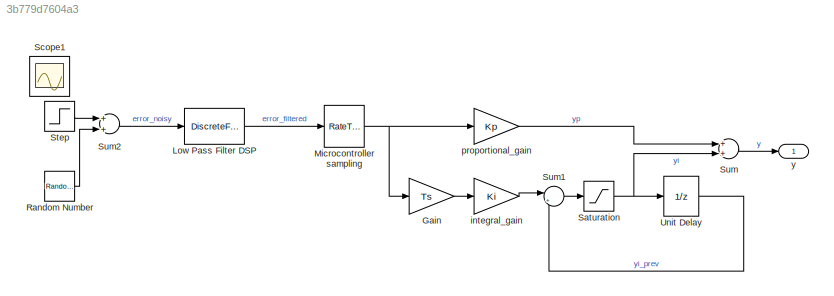
MODEL slx_3b779d7604a3
KIND model
CONFIG AbsTol = auto
CONFIG EnableMultiTasking = on
CONFIG FixedStep = auto
CONFIG MaxStep = auto
CONFIG MinStep = auto
CONFIG PreLoadFcn = etc_PI_data;\netc_PI_filtered_data;
CONFIG RelTol = 1e-3
CONFIG SampleTimeConstraint = Unconstrained
CONFIG Solver = VariableStepAuto
CONFIG SolverName = VariableStepAuto
CONFIG StartTime = 0.0
CONFIG StopTime = 2.5
BLOCK [Gain] Gain
  Gain = Ts
BLOCK [DiscreteFilter] Low Pass Filter DSP
  AttributesFormatString = Sample time = %<SampleTime>
  Denominator = [1]
  InputPortMap = u0
  Numerator = [0.00849187184562969	0.0444846983267221	0.117299133563462	0.199122538167043	0.235872521380986	0.199122538167043	0.117299133563462	0.0444846983267221	0.00849187184562969\n]
  Ports = [1, 1]
  SampleTime = Ts/2
BLOCK [RateTransition] Microcontroller sampling
  AttributesFormatString = Sample time = %<OutPortSampleTime>
  OutPortSampleTime = Ts
BLOCK [RandomNumber] Random Number
  AttributesFormatString = Mean: %<Mean>\nVariance: %<Variance>
  SampleTime = 0.005
  Variance = 0.01
BLOCK [Saturate] Saturation
  AttributesFormatString = Max: %<UpperLimit>\nMin: %<LowerLimit>
  InputPortMap = u0
  LowerLimit = -1
  Ports = [1, 1]
  UpperLimit = 1
BLOCK [Scope] Scope1
  Floating = off
  IOType = viewer
  NumInputPorts = 1
  Ports = []
  ScopeSpecificationString = Simulink.scopes.TimeScopeBlockCfg('CurrentConfiguration', extmgr.ConfigurationSet(extmgr.Configuration('Core','General UI',true),extmgr.Configuration('Core','Source UI',true),extmgr.Configuration('Sources','WiredSimulink',true,'DataLoggingMaxPoints','7500','DataLoggingLimitDataPoints',true,'DataLoggingSaveFormat','Array','DataLoggingDecimation','1','DataLoggingDecimateData',true),extmgr.Configurat...<+2088ch>
BLOCK [Step] Step
  SampleTime = 0.005
BLOCK [Sum] Sum
  Ports = [2, 1]
BLOCK [Sum] Sum1
  IconShape = round
  Inputs = |++
  Ports = [2, 1]
BLOCK [Sum] Sum2
  Ports = [2, 1]
BLOCK [UnitDelay] Unit Delay
  AttributesFormatString = yi0 = %<X0>\nSample time = %<SampleTime>
  SampleTime = Ts
BLOCK [Gain] integral_gain
  Gain = Ki
BLOCK [Gain] proportional_gain
  Gain = Kp
BLOCK [Outport] y
  IconDisplay = Port number
LINE Gain:1 -> integral_gain:1
LINE Low Pass Filter DSP:1 -> Microcontroller sampling:1
NET Microcontroller sampling:1 -> Gain:1, proportional_gain:1
LINE Random Number:1 -> Sum2:2
NET Saturation:1 -> Sum:2, Unit Delay:1
LINE Step:1 -> Sum2:1
LINE Sum1:1 -> Saturation:1
LINE Sum2:1 -> Low Pass Filter DSP:1
LINE Sum:1 -> y:1
LINE Unit Delay:1 -> Sum1:2
LINE integral_gain:1 -> Sum1:1
LINE proportional_gain:1 -> Sum:1
note: NET lines group one-source signal fan-out (src -> all destinations, sorted); 1:1 wires keep LINE
